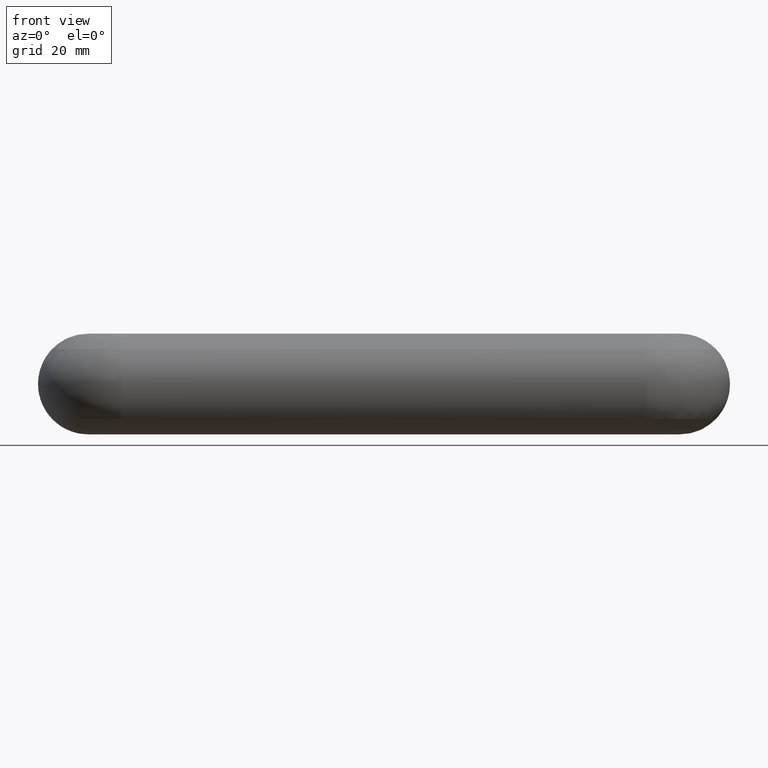
[diagram: clean part render]
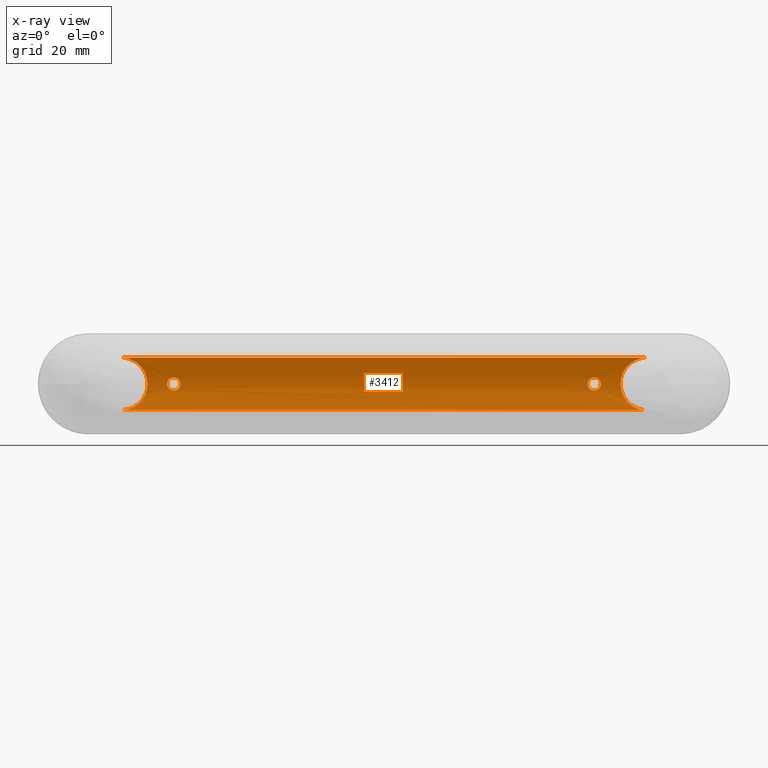
[diagram: x-ray — body ghosted, one internal face saturated and labeled with its STEP entity id]
A machine part, front view, then the same camera in x-ray: the body is ghosted and one INTERNAL B-rep face — a face not visible from any outside direction — is saturated and labeled: STEP entity #3412.
In plain terms, the highlighted face is a freeform B-spline surface patch.
Its self-contained STEP definition (entity closure, byte-faithful):
#70=CARTESIAN_POINT('',(-46.646547324523517,0.646650028865178,34.013075146340803));
#71=VERTEX_POINT('',#70);
#72=CARTESIAN_POINT('',(-46.500000100355180,0.000548694417445,34.000000009408318));
#73=VERTEX_POINT('',#72);
#74=CARTESIAN_POINT('',(-46.646547324523517,0.646650028865178,34.013075146340803));
#75=CARTESIAN_POINT('',(-46.635178346665889,0.622852803633140,34.012112565388847));
#76=CARTESIAN_POINT('',(-46.624431559368610,0.598755591103235,34.011190650084650));
#77=CARTESIAN_POINT('',(-46.576724043109799,0.483695527711371,34.007056075672097));
#78=CARTESIAN_POINT('',(-46.548324172051991,0.390199204505144,34.004470773048212));
#79=CARTESIAN_POINT('',(-46.519494405018712,0.245987254058344,34.001819493898310));
#80=CARTESIAN_POINT('',(-46.512181362451770,0.197097261630838,34.001138785218842));
#81=CARTESIAN_POINT('',(-46.502426242824612,0.098605670779868,34.000228332842312));
#82=CARTESIAN_POINT('',(-46.500017798733211,0.049506290083991,34.000001826483349));
#83=CARTESIAN_POINT('',(-46.500000100355180,0.000548694417445,34.000000009408318));
#84=B_SPLINE_CURVE_WITH_KNOTS('',3,(#74,#75,#76,#77,#78,#79,#80,#81,#82,#83),.UNSPECIFIED.,.F.,.U.,(4,2,2,2,4),(0.429164327943626,0.437500000000011,0.468750000000011,0.484375000000010,0.500000000000010),.UNSPECIFIED.);
#85=EDGE_CURVE('',#71,#73,#84,.T.);
#213=CARTESIAN_POINT('',(-47.934570894285699,1.498572897347724,34.070333308062203));
#214=VERTEX_POINT('',#213);
#220=CARTESIAN_POINT('',(-49.500000000000000,-2.154852E-015,34.0));
#221=VERTEX_POINT('',#220);
#222=CARTESIAN_POINT('',(-49.500000000000000,-2.154852E-015,34.0));
#223=CARTESIAN_POINT('',(-49.500000000000000,0.099155494789274,34.0));
#224=CARTESIAN_POINT('',(-49.490265023748648,0.196643194697829,34.000920983503548));
#225=CARTESIAN_POINT('',(-49.461664952560817,0.340477845406665,34.003551196677527));
#226=CARTESIAN_POINT('',(-49.449781267459080,0.388020289258829,34.004636195327329));
#227=CARTESIAN_POINT('',(-49.421206878134363,0.482282570590507,34.007200791893439));
#228=CARTESIAN_POINT('',(-49.404439199034613,0.529118846917612,34.008686806216787));
#229=CARTESIAN_POINT('',(-49.347957562225673,0.665338471931591,34.013581314719687));
#230=CARTESIAN_POINT('',(-49.301880942018109,0.751472802604176,34.017448578374967));
#231=CARTESIAN_POINT('',(-49.220243217463107,0.873732127311485,34.023822187419512));
#232=CARTESIAN_POINT('',(-49.190806447335142,0.913466420437885,34.026051124199107));
#233=CARTESIAN_POINT('',(-49.128117180875201,0.989844696150229,34.030602044363967));
#234=CARTESIAN_POINT('',(-49.095131214683377,1.026196093306536,34.032905022735797));
#235=CARTESIAN_POINT('',(-48.991397096388333,1.129909285933477,34.039796155902792));
#236=CARTESIAN_POINT('',(-48.915918437304192,1.191981137575843,34.044367593759489));
#237=CARTESIAN_POINT('',(-48.792959906642267,1.274223681498060,34.050795940287117));
#238=CARTESIAN_POINT('',(-48.750385448019479,1.299742142241517,34.052862038858763));
#239=CARTESIAN_POINT('',(-48.663832526832692,1.346006810249070,34.056700327261169));
#240=CARTESIAN_POINT('',(-48.575427195540932,1.387814163581718,34.060269109226439));
#241=CARTESIAN_POINT('',(-48.483365864834823,1.420833028626499,34.063204868206547));
#242=CARTESIAN_POINT('',(-48.389448020954411,1.449392732663630,34.065776885128876));
#243=CARTESIAN_POINT('',(-48.341294345931722,1.461490591875880,34.066885460291772));
#244=CARTESIAN_POINT('',(-48.196059418734428,1.490404987629908,34.069555319600731));
#245=CARTESIAN_POINT('',(-48.098699785285007,1.499946455507620,34.070462635924457));
#246=CARTESIAN_POINT('',(-47.978761911331127,1.500011792091789,34.070468788324902));
#247=CARTESIAN_POINT('',(-47.956679949231173,1.499538626634393,34.070424118158563));
#248=CARTESIAN_POINT('',(-47.934570894285699,1.498572897347724,34.070333308062203));
#249=B_SPLINE_CURVE_WITH_KNOTS('',3,(#222,#223,#224,#225,#226,#227,#228,#229,#230,#231,#232,#233,#234,#235,#236,#237,#238,#239,#240,#241,#242,#243,#244,#245,#246,#247,#248),.UNSPECIFIED.,.F.,.U.,(4,2,2,2,2,2,2,2,2,1,2,2,2,4),(0.0,0.031250000000001,0.046875000000002,0.062500000000002,0.093750000000003,0.109375000000004,0.125000000000004,0.156250000000005,0.171875000000005,0.187500000000006,0.203125000000006,0.218750000000007,0.250000000000006,0.257041345475773),.UNSPECIFIED.);
#250=EDGE_CURVE('',#221,#214,#249,.T.);
#252=CARTESIAN_POINT('',(-46.500000100355180,0.000548694417352,34.000000009408311));
#253=CARTESIAN_POINT('',(-46.499964283409561,-0.097366307346164,33.999996651569873));
#254=CARTESIAN_POINT('',(-46.509423597503158,-0.194718164068061,34.000892101180952));
#255=CARTESIAN_POINT('',(-46.538181504104742,-0.339882301441433,34.003537197194660));
#256=CARTESIAN_POINT('',(-46.550242788407971,-0.388092488058635,34.004638338125979));
#257=CARTESIAN_POINT('',(-46.578732294547052,-0.482089059497409,34.007195348777962));
#258=CARTESIAN_POINT('',(-46.611682277342133,-0.574213586897603,34.010115721717348));
#259=CARTESIAN_POINT('',(-46.653413663035671,-0.662655513992284,34.013669424617547));
#260=CARTESIAN_POINT('',(-46.699593858995577,-0.749233582777349,34.017493105458357));
#261=CARTESIAN_POINT('',(-46.725059517656490,-0.791808118957979,34.019551706023350));
#262=CARTESIAN_POINT('',(-46.807225019279180,-0.914888609848644,34.025967011227117));
#263=CARTESIAN_POINT('',(-46.869243327579987,-0.990429581229545,34.030533501296041));
#264=CARTESIAN_POINT('',(-46.972857399725243,-1.094243314167390,34.037423944690168));
#265=CARTESIAN_POINT('',(-47.009172637497002,-1.127253460676834,34.039727798406041));
#266=CARTESIAN_POINT('',(-47.085469426072990,-1.189988679040801,34.044282653000643));
#267=CARTESIAN_POINT('',(-47.125204155167182,-1.219481102988849,34.046517213833560));
#268=CARTESIAN_POINT('',(-47.247407606717047,-1.301234956611312,34.052906965094976));
#269=CARTESIAN_POINT('',(-47.333489138931007,-1.347374874574763,34.056787827491100));
#270=CARTESIAN_POINT('',(-47.469593724377972,-1.403952680085882,34.061704130314077));
#271=CARTESIAN_POINT('',(-47.516399344882487,-1.420759713082729,34.063198280327377));
#272=CARTESIAN_POINT('',(-47.610679957866282,-1.449433565480666,34.065780547709991));
#273=CARTESIAN_POINT('',(-47.658224008809270,-1.461362031286811,34.066873705992592));
#274=CARTESIAN_POINT('',(-47.802039798706652,-1.490090942616703,34.069526092051063));
#275=CARTESIAN_POINT('',(-47.899483655690268,-1.499904095675678,34.070458647126053));
#276=CARTESIAN_POINT('',(-48.097633322687763,-1.500094519021723,34.070476578279347));
#277=CARTESIAN_POINT('',(-48.195321727622179,-1.490438245255595,34.069558790423393));
#278=CARTESIAN_POINT('',(-48.339169445305060,-1.461968971087258,34.066929437448273));
#279=CARTESIAN_POINT('',(-48.386707631888918,-1.450131041567799,34.065844099240792));
#280=CARTESIAN_POINT('',(-48.480944956339599,-1.421659164234226,34.063278582839978));
#281=CARTESIAN_POINT('',(-48.527806874749658,-1.404933668647629,34.061790648912663));
#282=CARTESIAN_POINT('',(-48.664148519902618,-1.348547954224050,34.056887313177818));
#283=CARTESIAN_POINT('',(-48.750328994403603,-1.302538168703583,34.053013931840951));
#284=CARTESIAN_POINT('',(-48.872622875045707,-1.221036092071026,34.046636296799143));
#285=CARTESIAN_POINT('',(-48.912330402504267,-1.191678339037893,34.044408834654661));
#286=CARTESIAN_POINT('',(-48.988816143658802,-1.129020221743376,34.039852756372440));
#287=CARTESIAN_POINT('',(-49.025212609843273,-1.096052472178691,34.037548173057019));
#288=CARTESIAN_POINT('',(-49.129042380380227,-0.992386503287885,34.030655416546701));
#289=CARTESIAN_POINT('',(-49.191167063634452,-0.916970933947787,34.026087322184999));
#290=CARTESIAN_POINT('',(-49.273476570426801,-0.794157472653987,34.019668514337113));
#291=CARTESIAN_POINT('',(-49.299054269215517,-0.751576986970337,34.017603173798683));
#292=CARTESIAN_POINT('',(-49.345416375096903,-0.665029878525455,34.013768063168172));
#293=CARTESIAN_POINT('',(-49.387309828242913,-0.576642272372239,34.010203534799878));
#294=CARTESIAN_POINT('',(-49.420402871611522,-0.484626534583855,34.007272246354688));
#295=CARTESIAN_POINT('',(-49.449036052379860,-0.390770667538297,34.004703748738137));
#296=CARTESIAN_POINT('',(-49.461160807984022,-0.342717355417631,34.003597354638629));
#297=CARTESIAN_POINT('',(-49.490263876994227,-0.197225624344254,34.000921490097689));
#298=CARTESIAN_POINT('',(-49.499999999999993,-0.099155494789274,34.0));
#299=CARTESIAN_POINT('',(-49.500000000000000,-2.114194E-015,34.0));
#300=B_SPLINE_CURVE_WITH_KNOTS('',3,(#252,#253,#254,#255,#256,#257,#258,#259,#260,#261,#262,#263,#264,#265,#266,#267,#268,#269,#270,#271,#272,#273,#274,#275,#276,#277,#278,#279,#280,#281,#282,#283,#284,#285,#286,#287,#288,#289,#290,#291,#292,#293,#294,#295,#296,#297,#298,#299),.UNSPECIFIED.,.F.,.U.,(4,2,2,1,2,2,2,2,2,2,2,2,2,2,2,2,2,2,2,2,2,1,2,2,4),(0.500000000000010,0.531250000000009,0.546875000000009,0.562500000000009,0.578125000000009,0.593750000000009,0.625000000000009,0.640625000000009,0.656250000000009,0.687500000000007,0.703125000000005,0.718750000000003,0.750000000000001,0.781249999999999,0.796874999999999,0.812499999999999,0.843749999999999,0.859375000000000,0.875000000000000,0.906250000000000,0.921875000000000,0.937500000000000,0.953125000000000,0.968750000000000,1.0),.UNSPECIFIED.);
#301=EDGE_CURVE('',#73,#221,#300,.T.);
#320=CARTESIAN_POINT('',(-47.934570894285699,1.498572897347724,34.070333308062203));
#321=CARTESIAN_POINT('',(-47.907619083490879,1.497396355314778,34.070222635959752));
#322=CARTESIAN_POINT('',(-47.880626973906693,1.495488679370876,34.070043398200937));
#323=CARTESIAN_POINT('',(-47.804385013222912,1.488011552658190,34.069342784269608));
#324=CARTESIAN_POINT('',(-47.755398560881623,1.480734561124001,34.068662637758557));
#325=CARTESIAN_POINT('',(-47.611084166309134,1.452021682473214,34.066011475626709));
#326=CARTESIAN_POINT('',(-47.517555177354517,1.423695819765120,34.063422683024982));
#327=CARTESIAN_POINT('',(-47.381302226160372,1.367344182812152,34.058522512091884));
#328=CARTESIAN_POINT('',(-47.336338146794319,1.346097684619390,34.056708598261757));
#329=CARTESIAN_POINT('',(-47.249492673034879,1.299679017992704,34.052857605342922));
#330=CARTESIAN_POINT('',(-47.207486625374990,1.274484996795246,34.050818183155371));
#331=CARTESIAN_POINT('',(-47.085616421952857,1.193085389199606,34.044453109088863));
#332=CARTESIAN_POINT('',(-47.009859367115567,1.131119816498217,34.039879361400267));
#333=CARTESIAN_POINT('',(-46.869757708165352,0.991143035727037,34.030575749491909));
#334=CARTESIAN_POINT('',(-46.807700379326093,0.915407783884753,34.026002717640857));
#335=CARTESIAN_POINT('',(-46.726209143028562,0.793631498912814,34.019644946740662));
#336=CARTESIAN_POINT('',(-46.700986237295680,0.751660893160824,34.017608558637157));
#337=CARTESIAN_POINT('',(-46.666907139565552,0.688040595925561,34.014789568082470));
#338=CARTESIAN_POINT('',(-46.656489336034362,0.667460013286191,34.013916808604222));
#339=CARTESIAN_POINT('',(-46.646547324523517,0.646650028865178,34.013075146340803));
#340=B_SPLINE_CURVE_WITH_KNOTS('',3,(#320,#321,#322,#323,#324,#325,#326,#327,#328,#329,#330,#331,#332,#333,#334,#335,#336,#337,#338,#339),.UNSPECIFIED.,.F.,.U.,(4,2,2,2,2,2,2,2,2,4),(0.257041345475773,0.265625000000006,0.281250000000007,0.312500000000008,0.328125000000008,0.343750000000009,0.375000000000010,0.406250000000011,0.421875000000011,0.429164327943626),.UNSPECIFIED.);
#341=EDGE_CURVE('',#214,#71,#340,.T.);
#401=CARTESIAN_POINT('',(46.818144120828990,0.924079869259536,34.026708027515042));
#402=VERTEX_POINT('',#401);
#403=CARTESIAN_POINT('',(49.499699899644803,0.000548694417225,34.000000009408303));
#404=VERTEX_POINT('',#403);
#405=CARTESIAN_POINT('',(46.818144120828990,0.924079869259536,34.026708027515042));
#406=CARTESIAN_POINT('',(46.825397840779800,0.933354594922333,34.027244021002822));
#407=CARTESIAN_POINT('',(46.832763770133653,0.942549007523321,34.027783979919931));
#408=CARTESIAN_POINT('',(46.871582819124811,0.989844696150216,34.030602044363988));
#409=CARTESIAN_POINT('',(46.904568785316627,1.026196093306528,34.032905022735797));
#410=CARTESIAN_POINT('',(47.008302903611657,1.129909285933478,34.039796155902792));
#411=CARTESIAN_POINT('',(47.083781562695812,1.191981137575848,34.044367593759503));
#412=CARTESIAN_POINT('',(47.206740093357752,1.274223681498072,34.050795940287117));
#413=CARTESIAN_POINT('',(47.249314551980518,1.299742142241515,34.052862038858741));
#414=CARTESIAN_POINT('',(47.335867473167312,1.346006810249071,34.056700327261169));
#415=CARTESIAN_POINT('',(47.424272804459022,1.387814163581721,34.060269109226439));
#416=CARTESIAN_POINT('',(47.516334135165188,1.420833028626499,34.063204868206547));
#417=CARTESIAN_POINT('',(47.610251979045593,1.449392732663630,34.065776885128876));
#418=CARTESIAN_POINT('',(47.658405654068311,1.461490591875879,34.066885460291758));
#419=CARTESIAN_POINT('',(47.803640581265583,1.490404987629908,34.069555319600731));
#420=CARTESIAN_POINT('',(47.901000214714990,1.499946455507620,34.070462635924471));
#421=CARTESIAN_POINT('',(48.047824197307747,1.500026438395264,34.070470167489802));
#422=CARTESIAN_POINT('',(48.096897211639472,1.497664013593982,34.070247145753882));
#423=CARTESIAN_POINT('',(48.195314793794637,1.488011978450980,34.069342642346378));
#424=CARTESIAN_POINT('',(48.244301160751959,1.480734932315389,34.068662440158803));
#425=CARTESIAN_POINT('',(48.388615296104767,1.452021887898652,34.066011108996960));
#426=CARTESIAN_POINT('',(48.482144106805073,1.423695911200391,34.063422200160538));
#427=CARTESIAN_POINT('',(48.618396782411061,1.367344098014154,34.058521849524048));
#428=CARTESIAN_POINT('',(48.663360768037514,1.346097539876716,34.056707874568907));
#429=CARTESIAN_POINT('',(48.750206055073122,1.299678753843762,34.052856759892641));
#430=CARTESIAN_POINT('',(48.792212009527972,1.274484673043496,34.050817276928662));
#431=CARTESIAN_POINT('',(48.914081933793568,1.193084886932697,34.044452020831919));
#432=CARTESIAN_POINT('',(48.989838803133487,1.131119195609354,34.039878152185644));
#433=CARTESIAN_POINT('',(49.129940092346160,0.991142178398209,34.030574299181680));
#434=CARTESIAN_POINT('',(49.191997242972143,0.915406812591953,34.026001151122657));
#435=CARTESIAN_POINT('',(49.273488221801507,0.793630362974130,34.019643212334600));
#436=CARTESIAN_POINT('',(49.298711043349783,0.751659703387732,34.017606769336631));
#437=CARTESIAN_POINT('',(49.345187118293452,0.664895792547946,34.013762191362751));
#438=CARTESIAN_POINT('',(49.366480763201203,0.619941557919248,34.011950159246929));
#439=CARTESIAN_POINT('',(49.422973808415669,0.483694558421629,34.007054662861123));
#440=CARTESIAN_POINT('',(49.451374108532903,0.390198428786636,34.004469642381530));
#441=CARTESIAN_POINT('',(49.480204522670910,0.245986770282754,34.001818788759877));
#442=CARTESIAN_POINT('',(49.487517782201977,0.197096875739126,34.001138222753447));
#443=CARTESIAN_POINT('',(49.497273334031007,0.098605479877104,34.000228054587630));
#444=CARTESIAN_POINT('',(49.499681991171990,0.049506195299095,34.000001688327522));
#445=CARTESIAN_POINT('',(49.499699899644803,0.000548694417225,34.000000009408303));
#446=B_SPLINE_CURVE_WITH_KNOTS('',3,(#405,#406,#407,#408,#409,#410,#411,#412,#413,#414,#415,#416,#417,#418,#419,#420,#421,#422,#423,#424,#425,#426,#427,#428,#429,#430,#431,#432,#433,#434,#435,#436,#437,#438,#439,#440,#441,#442,#443,#444,#445),.UNSPECIFIED.,.F.,.U.,(4,2,2,2,2,1,2,2,2,2,2,2,2,2,2,2,2,2,2,2,4),(0.105649075200949,0.109374999999995,0.124999999999995,0.156249999999993,0.171874999999994,0.187499999999994,0.203124999999994,0.218749999999994,0.249999999999997,0.265624999999997,0.281249999999997,0.312499999999997,0.328124999999997,0.343749999999997,0.374999999999996,0.406249999999994,0.421874999999993,0.437499999999991,0.468749999999989,0.484374999999988,0.499999999999988),.UNSPECIFIED.);
#447=EDGE_CURVE('',#402,#404,#446,.T.);
#550=CARTESIAN_POINT('',(47.934270789128057,-1.498575314769526,34.070333093464917));
#551=VERTEX_POINT('',#550);
#557=CARTESIAN_POINT('',(49.499699899644803,0.000548694417225,34.000000009408303));
#558=CARTESIAN_POINT('',(49.499735720641368,-0.097366214295195,33.999996651569937));
#559=CARTESIAN_POINT('',(49.490276410987498,-0.194717969035256,34.000892101181122));
#560=CARTESIAN_POINT('',(49.461518511641962,-0.339881939735777,34.003537197194973));
#561=CARTESIAN_POINT('',(49.449457229857423,-0.388092068497360,34.004638338126341));
#562=CARTESIAN_POINT('',(49.420967728844943,-0.482088522178087,34.007195348778410));
#563=CARTESIAN_POINT('',(49.388017751292423,-0.574212929155691,34.010115721717909));
#564=CARTESIAN_POINT('',(49.346286371069723,-0.662654730582933,34.013669424618222));
#565=CARTESIAN_POINT('',(49.300106180696353,-0.749232671043975,34.017493105459153));
#566=CARTESIAN_POINT('',(49.274640524902090,-0.791807141377030,34.019551706024188));
#567=CARTESIAN_POINT('',(49.192475031936972,-0.914887433401774,34.025967011228133));
#568=CARTESIAN_POINT('',(49.130456729451829,-0.990428271195315,34.030533501297143));
#569=CARTESIAN_POINT('',(49.026842666094652,-1.094241802269989,34.037423944691483));
#570=CARTESIAN_POINT('',(48.990527431263047,-1.127251881242902,34.039727798407398));
#571=CARTESIAN_POINT('',(48.914230648589808,-1.189986964019566,34.044282653002128));
#572=CARTESIAN_POINT('',(48.874495922437823,-1.219479320383810,34.046517213835102));
#573=CARTESIAN_POINT('',(48.752292479565412,-1.301232974683183,34.052906965096682));
#574=CARTESIAN_POINT('',(48.666210952988934,-1.347372763152705,34.056787827492919));
#575=CARTESIAN_POINT('',(48.530106375775368,-1.403950379540897,34.061704130316052));
#576=CARTESIAN_POINT('',(48.483300757992190,-1.420757350027282,34.063198280329409));
#577=CARTESIAN_POINT('',(48.389020150274810,-1.449431081454485,34.065780547712130));
#578=CARTESIAN_POINT('',(48.341476101882421,-1.461359488672976,34.066873705994773));
#579=CARTESIAN_POINT('',(48.197660319394721,-1.490088229801365,34.069526092053387));
#580=CARTESIAN_POINT('',(48.100216467030400,-1.499901276753577,34.070458647128483));
#581=CARTESIAN_POINT('',(47.978779174907793,-1.500017858259003,34.070469636351163));
#582=CARTESIAN_POINT('',(47.956487345372381,-1.499542525032861,34.070424445343797));
#583=CARTESIAN_POINT('',(47.934270789128057,-1.498575314769526,34.070333093464917));
#584=B_SPLINE_CURVE_WITH_KNOTS('',3,(#557,#558,#559,#560,#561,#562,#563,#564,#565,#566,#567,#568,#569,#570,#571,#572,#573,#574,#575,#576,#577,#578,#579,#580,#581,#582,#583),.UNSPECIFIED.,.F.,.U.,(4,2,2,1,2,2,2,2,2,2,2,2,2,4),(0.499999999999988,0.531249999999986,0.546874999999985,0.562499999999984,0.578124999999984,0.593749999999983,0.624999999999983,0.640624999999982,0.656249999999981,0.687499999999979,0.703124999999979,0.718749999999980,0.749999999999980,0.757053526828928),.UNSPECIFIED.);
#585=EDGE_CURVE('',#404,#551,#584,.T.);
#608=CARTESIAN_POINT('',(46.499699999999997,6.315478E-015,33.999999999999993));
#609=VERTEX_POINT('',#608);
#610=CARTESIAN_POINT('',(46.499699999999997,6.315478E-015,33.999999999999993));
#611=CARTESIAN_POINT('',(46.499699999999997,0.099155494789274,33.999999999999993));
#612=CARTESIAN_POINT('',(46.509434976251327,0.196643194697833,34.000920983503548));
#613=CARTESIAN_POINT('',(46.538035047439188,0.340477845406680,34.003551196677527));
#614=CARTESIAN_POINT('',(46.549918732540917,0.388020289258848,34.004636195327343));
#615=CARTESIAN_POINT('',(46.578493121865648,0.482282570590537,34.007200791893453));
#616=CARTESIAN_POINT('',(46.595260800965370,0.529118846917589,34.008686806216787));
#617=CARTESIAN_POINT('',(46.651742437774331,0.665338471931585,34.013581314719680));
#618=CARTESIAN_POINT('',(46.697819057981889,0.751472802604179,34.017448578374967));
#619=CARTESIAN_POINT('',(46.772967694057819,0.864014174248214,34.023315572208872));
#620=CARTESIAN_POINT('',(46.794981090046868,0.894458473293528,34.024994039792993));
#621=CARTESIAN_POINT('',(46.818144120828990,0.924079869259536,34.026708027515042));
#622=B_SPLINE_CURVE_WITH_KNOTS('',3,(#610,#611,#612,#613,#614,#615,#616,#617,#618,#619,#620,#621),.UNSPECIFIED.,.F.,.U.,(4,2,2,2,2,4),(0.0,0.031249999999998,0.046874999999997,0.062499999999996,0.093749999999995,0.105649075200949),.UNSPECIFIED.);
#623=EDGE_CURVE('',#609,#402,#622,.T.);
#625=CARTESIAN_POINT('',(47.934270789128057,-1.498575314769526,34.070333093464917));
#626=CARTESIAN_POINT('',(47.858058935580907,-1.495257540800524,34.070019719270583));
#627=CARTESIAN_POINT('',(47.782732875400427,-1.486151505443654,34.069163137908411));
#628=CARTESIAN_POINT('',(47.660530671038373,-1.461966298651603,34.066929437450561));
#629=CARTESIAN_POINT('',(47.612992481862591,-1.450128428669147,34.065844099243023));
#630=CARTESIAN_POINT('',(47.518755152046943,-1.421656674570510,34.063278582842088));
#631=CARTESIAN_POINT('',(47.471893230852629,-1.404931242938829,34.061790648914730));
#632=CARTESIAN_POINT('',(47.335551577249063,-1.348545722627811,34.056887313179729));
#633=CARTESIAN_POINT('',(47.249371096936599,-1.302536070597526,34.053013931842749));
#634=CARTESIAN_POINT('',(47.127077207313832,-1.221034200253052,34.046636296800749));
#635=CARTESIAN_POINT('',(47.087369676808308,-1.191676517209977,34.044408834656217));
#636=CARTESIAN_POINT('',(47.010883929508182,-1.129018541081315,34.039852756373882));
#637=CARTESIAN_POINT('',(46.974487460256668,-1.096050861967198,34.037548173058390));
#638=CARTESIAN_POINT('',(46.870657680535253,-0.992385104045355,34.030655416547887));
#639=CARTESIAN_POINT('',(46.808532991180108,-0.916969674844553,34.026087322186093));
#640=CARTESIAN_POINT('',(46.726223475269983,-0.794156422988843,34.019668514338022));
#641=CARTESIAN_POINT('',(46.700645773448322,-0.751576006972455,34.017603173799522));
#642=CARTESIAN_POINT('',(46.654283661646289,-0.665029034525811,34.013768063168889));
#643=CARTESIAN_POINT('',(46.612390202690271,-0.576641561829477,34.010203534800503));
#644=CARTESIAN_POINT('',(46.579297153729641,-0.484625952491892,34.007272246355178));
#645=CARTESIAN_POINT('',(46.550663967479693,-0.390770211359635,34.004703748738550));
#646=CARTESIAN_POINT('',(46.538539209179071,-0.342716961177898,34.003597354638963));
#647=CARTESIAN_POINT('',(46.509436132334962,-0.197225410051084,34.000921490097873));
#648=CARTESIAN_POINT('',(46.499700004477667,-0.099155391936111,34.000000000000078));
#649=CARTESIAN_POINT('',(46.499699999999997,6.315478E-015,33.999999999999993));
#650=B_SPLINE_CURVE_WITH_KNOTS('',3,(#625,#626,#627,#628,#629,#630,#631,#632,#633,#634,#635,#636,#637,#638,#639,#640,#641,#642,#643,#644,#645,#646,#647,#648,#649),.UNSPECIFIED.,.F.,.U.,(4,2,2,2,2,2,2,2,2,1,2,2,4),(0.757053526828928,0.781249999999980,0.796874999999981,0.812499999999983,0.843749999999987,0.859374999999990,0.874999999999992,0.906249999999995,0.921874999999995,0.937499999999996,0.953124999999997,0.968749999999998,1.0),.UNSPECIFIED.);
#651=EDGE_CURVE('',#551,#609,#650,.T.);
#3220=CARTESIAN_POINT('',(-62.999685000000007,6.386210838728633,35.329747407651610));
#3221=CARTESIAN_POINT('',(63.074684625000003,6.386210838728633,35.329747407651610));
#3222=CARTESIAN_POINT('',(-62.999685000000007,-0.098590311985283,32.506803008092376));
#3223=CARTESIAN_POINT('',(63.074684625000003,-0.098590311985283,32.506803008092376));
#3224=CARTESIAN_POINT('',(-62.999685000000014,-6.551160730065451,35.402661438164571));
#3225=CARTESIAN_POINT('',(63.074684624999996,-6.551160730065451,35.402661438164571));
#3233=(BOUNDED_SURFACE()B_SPLINE_SURFACE(1,2,((#3220,#3222,#3224),(#3221,#3223,#3225)),.UNSPECIFIED.,.F.,.F.,.U.)B_SPLINE_SURFACE_WITH_KNOTS((2,2),(3,3),(0.0,126.074369625000000),(0.0,13.514443466652139),.UNSPECIFIED.)GEOMETRIC_REPRESENTATION_ITEM()RATIONAL_B_SPLINE_SURFACE(((1.0,0.912428955724240,0.995199893620000),(1.0,0.912428955724240,0.995199893620000)))REPRESENTATION_ITEM('')SURFACE());
#3234=CARTESIAN_POINT('',(-59.999699999999997,-6.0,35.167603025808702));
#3235=VERTEX_POINT('',#3234);
#3236=CARTESIAN_POINT('',(59.999699999999997,-6.0,35.167603025808702));
#3237=VERTEX_POINT('',#3236);
#3238=CARTESIAN_POINT('',(-59.999699999999997,-6.0,35.167603025808702));
#3239=CARTESIAN_POINT('',(59.999699999999997,-6.0,35.167603025808702));
#3240=QUASI_UNIFORM_CURVE('',1,(#3238,#3239),.UNSPECIFIED.,.F.,.U.);
#3241=EDGE_CURVE('',#3235,#3237,#3240,.T.);
#3242=ORIENTED_EDGE('',*,*,#3241,.T.);
#3243=CARTESIAN_POINT('',(59.999699999999997,6.0,35.167603025808702));
#3244=VERTEX_POINT('',#3243);
#3245=CARTESIAN_POINT('',(59.999699999999997,6.0,35.167603025808702));
#3246=CARTESIAN_POINT('',(59.599439199882397,6.0,35.167603025808688));
#3247=CARTESIAN_POINT('',(59.206676438054423,5.960357239596930,35.151395769228728));
#3248=CARTESIAN_POINT('',(58.628110967990409,5.844435791898569,35.105561548658557));
#3249=CARTESIAN_POINT('',(58.437030834345947,5.796312262243952,35.086697317949692));
#3250=CARTESIAN_POINT('',(58.153094428477658,5.709627006548148,35.053391099380839));
#3251=CARTESIAN_POINT('',(58.058668821345293,5.678218980672506,35.041420120483693));
#3252=CARTESIAN_POINT('',(57.872661432370130,5.611192365335045,35.016148591114977));
#3253=CARTESIAN_POINT('',(57.780905781211082,5.575533705284524,35.002832146899571));
#3254=CARTESIAN_POINT('',(57.328186188050182,5.386742624080043,34.933184831981158));
#3255=CARTESIAN_POINT('',(56.985217430673842,5.202451445431585,34.867688792572061));
#3256=CARTESIAN_POINT('',(56.579508489160730,4.930702578422347,34.778586019913533));
#3257=CARTESIAN_POINT('',(56.499527976043282,4.874262730819746,34.760402399250871));
#3258=CARTESIAN_POINT('',(56.341909625138022,4.757122127916675,34.723430972175002));
#3259=CARTESIAN_POINT('',(56.264747231264877,4.696769340945444,34.704754127859488));
#3260=CARTESIAN_POINT('',(56.038702343937892,4.510937294574108,34.648511510295613));
#3261=CARTESIAN_POINT('',(55.894967190054302,4.380489374984387,34.610669836695159));
#3262=CARTESIAN_POINT('',(55.620978996238392,4.106619166250102,34.535335468787487));
#3263=CARTESIAN_POINT('',(55.490726733632997,3.963196670963746,34.497840746397713));
#3264=CARTESIAN_POINT('',(55.305465437705351,3.738128384171152,34.442610645495513));
#3265=CARTESIAN_POINT('',(55.245401248568982,3.661446651353721,34.424369166388232));
#3266=CARTESIAN_POINT('',(55.128694867796213,3.504690742506689,34.388350175428123));
#3267=CARTESIAN_POINT('',(55.071964721872440,3.424484711546501,34.370544551773783));
#3268=CARTESIAN_POINT('',(54.798023909350050,3.016172081075608,34.283312170161082));
#3269=CARTESIAN_POINT('',(54.613700950567932,2.672723079807311,34.220611162792501));
#3270=CARTESIAN_POINT('',(54.387988677703213,2.132323765440063,34.141679296230002));
#3271=CARTESIAN_POINT('',(54.321279650060838,1.947956812384160,34.117886104083013));
#3272=CARTESIAN_POINT('',(54.234435050109163,1.664772780573832,34.086560680496852));
#3273=CARTESIAN_POINT('',(54.207671373461380,1.569179187452361,34.076838324886367));
#3274=CARTESIAN_POINT('',(54.158783024450877,1.376084233511325,34.058990206501250));
#3275=CARTESIAN_POINT('',(54.136835268410998,1.279300412110458,34.050929358773722));
#3276=CARTESIAN_POINT('',(54.039339616483772,0.794218221895805,34.014987043231820));
#3277=CARTESIAN_POINT('',(54.000165441790173,0.402460982800336,34.000174540569688));
#3278=CARTESIAN_POINT('',(53.999588743433108,-0.091865492344827,33.999958278812272));
#3279=CARTESIAN_POINT('',(54.001915116225931,-0.190964180258303,34.000831158852748));
#3280=CARTESIAN_POINT('',(54.011538829806518,-0.389636535707089,34.004436418315187));
#3281=CARTESIAN_POINT('',(54.018870404665023,-0.489515414653622,34.007181604998387));
#3282=CARTESIAN_POINT('',(54.048232431573872,-0.787290124697080,34.018146650457162));
#3283=CARTESIAN_POINT('',(54.077509500782597,-0.983098007415572,34.029056038840729));
#3284=CARTESIAN_POINT('',(54.193395177342033,-1.562725923250655,34.071785457889597));
#3285=CARTESIAN_POINT('',(54.307782062047629,-1.938818540914208,34.113603000686453));
#3286=CARTESIAN_POINT('',(54.497990633818787,-2.396039074547827,34.180153732166367));
#3287=CARTESIAN_POINT('',(54.538229955280521,-2.486365776642339,34.194112376956753));
#3288=CARTESIAN_POINT('',(54.622640399012973,-2.664000726737872,34.223080197469770));
#3289=CARTESIAN_POINT('',(54.666868023072752,-2.751445641914044,34.238109196077488));
#3290=CARTESIAN_POINT('',(54.805516673399360,-3.009760726012300,34.284658460189533));
#3291=CARTESIAN_POINT('',(54.905887790930500,-3.176621116062990,34.317640578465529));
#3292=CARTESIAN_POINT('',(55.122359656472590,-3.499913671747188,34.386610776915667));
#3293=CARTESIAN_POINT('',(55.238459868529908,-3.656345793575812,34.422600746933092));
#3294=CARTESIAN_POINT('',(55.424679712610157,-3.883137572621099,34.478166970199347));
#3295=CARTESIAN_POINT('',(55.488939804847732,-3.957603113961449,34.497000560752006));
#3296=CARTESIAN_POINT('',(55.620425229199803,-4.102625065447755,34.534745990016191));
#3297=CARTESIAN_POINT('',(55.687693628415303,-4.173255749308924,34.553672707198210));
#3298=CARTESIAN_POINT('',(56.031566068696947,-4.517224044352569,34.648253092855377));
#3299=CARTESIAN_POINT('',(56.330517737703893,-4.763298087824689,34.723767114085277));
#3300=CARTESIAN_POINT('',(56.734937066932012,-5.034959502079358,34.812753654676023));
#3301=CARTESIAN_POINT('',(56.817372785744361,-5.087477002464951,34.830278826151151));
#3302=CARTESIAN_POINT('',(56.985435070828373,-5.188818332334230,34.864643147353277));
#3303=CARTESIAN_POINT('',(57.071251027759807,-5.237732214900453,34.881514897386673));
#3304=CARTESIAN_POINT('',(57.330828187754861,-5.377335009266765,34.930361968185800));
#3305=CARTESIAN_POINT('',(57.507419186817977,-5.461376651159694,34.960725002009703));
#3306=CARTESIAN_POINT('',(58.047759191979253,-5.687030982185144,35.043951451947542));
#3307=CARTESIAN_POINT('',(58.421970193428159,-5.802456502422559,35.088975433913099));
#3308=CARTESIAN_POINT('',(58.908579055962790,-5.900789217197903,35.127840311297739));
#3309=CARTESIAN_POINT('',(59.007065339620233,-5.918160045603141,35.134750671285190));
#3310=CARTESIAN_POINT('',(59.204257177521733,-5.947874629691555,35.146615088818940));
#3311=CARTESIAN_POINT('',(59.303100007783627,-5.960257170541039,35.151584302734982));
#3312=CARTESIAN_POINT('',(59.600368651807401,-5.990008583209005,35.163549811219298));
#3313=CARTESIAN_POINT('',(59.799533032961783,-5.999999999999999,35.167603025808702));
#3314=CARTESIAN_POINT('',(59.999700000000011,-6.0,35.167603025808702));
#3315=B_SPLINE_CURVE_WITH_KNOTS('',3,(#3245,#3246,#3247,#3248,#3249,#3250,#3251,#3252,#3253,#3254,#3255,#3256,#3257,#3258,#3259,#3260,#3261,#3262,#3263,#3264,#3265,#3266,#3267,#3268,#3269,#3270,#3271,#3272,#3273,#3274,#3275,#3276,#3277,#3278,#3279,#3280,#3281,#3282,#3283,#3284,#3285,#3286,#3287,#3288,#3289,#3290,#3291,#3292,#3293,#3294,#3295,#3296,#3297,#3298,#3299,#3300,#3301,#3302,#3303,#3304,#3305,#3306,#3307,#3308,#3309,#3310,#3311,#3312,#3313,#3314),.UNSPECIFIED.,.F.,.U.,(4,2,2,2,2,2,2,2,2,2,2,2,2,2,2,2,2,2,2,2,2,2,2,2,2,2,2,2,2,2,2,2,2,2,4),(0.0,0.062499999999999,0.093749999999999,0.109374999999999,0.125000000000000,0.187499999999999,0.203124999999999,0.218749999999999,0.249999999999999,0.281249999999998,0.296874999999998,0.312499999999999,0.374999999999998,0.406249999999998,0.421874999999998,0.437499999999998,0.499999999999997,0.515624999999997,0.531249999999997,0.562499999999997,0.624999999999997,0.640624999999997,0.656249999999997,0.687499999999997,0.718749999999997,0.734374999999997,0.749999999999997,0.812499999999997,0.828124999999998,0.843749999999998,0.874999999999998,0.937500000000001,0.953125000000001,0.968750000000000,1.0),.UNSPECIFIED.);
#3316=EDGE_CURVE('',#3244,#3237,#3315,.T.);
#3317=ORIENTED_EDGE('',*,*,#3316,.F.);
#3318=CARTESIAN_POINT('',(-59.999699999999997,6.0,35.167603025808702));
#3319=VERTEX_POINT('',#3318);
#3320=CARTESIAN_POINT('',(-59.999699999999997,6.0,35.167603025808702));
#3321=CARTESIAN_POINT('',(59.999699999999997,6.0,35.167603025808702));
#3322=QUASI_UNIFORM_CURVE('',1,(#3320,#3321),.UNSPECIFIED.,.F.,.U.);
#3323=EDGE_CURVE('',#3319,#3244,#3322,.T.);
#3324=ORIENTED_EDGE('',*,*,#3323,.F.);
#3325=CARTESIAN_POINT('',(-59.999699999999997,-6.0,35.167603025808702));
#3326=CARTESIAN_POINT('',(-59.599439199882397,-6.0,35.167603025808688));
#3327=CARTESIAN_POINT('',(-59.206676438054423,-5.960357239596930,35.151395769228728));
#3328=CARTESIAN_POINT('',(-58.628110967990409,-5.844435791898569,35.105561548658557));
#3329=CARTESIAN_POINT('',(-58.437030834345947,-5.796312262243952,35.086697317949692));
#3330=CARTESIAN_POINT('',(-58.153094428477658,-5.709627006548148,35.053391099380839));
#3331=CARTESIAN_POINT('',(-58.058668821345293,-5.678218980672506,35.041420120483693));
#3332=CARTESIAN_POINT('',(-57.872661432370130,-5.611192365335045,35.016148591114977));
#3333=CARTESIAN_POINT('',(-57.780905781211082,-5.575533705284524,35.002832146899571));
#3334=CARTESIAN_POINT('',(-57.328186188050182,-5.386742624080043,34.933184831981158));
#3335=CARTESIAN_POINT('',(-56.985217430673842,-5.202451445431585,34.867688792572061));
#3336=CARTESIAN_POINT('',(-56.579508489160730,-4.930702578422347,34.778586019913533));
#3337=CARTESIAN_POINT('',(-56.499527976043282,-4.874262730819746,34.760402399250871));
#3338=CARTESIAN_POINT('',(-56.341909625138022,-4.757122127916675,34.723430972175002));
#3339=CARTESIAN_POINT('',(-56.264747231264877,-4.696769340945444,34.704754127859488));
#3340=CARTESIAN_POINT('',(-56.038702343937892,-4.510937294574108,34.648511510295613));
#3341=CARTESIAN_POINT('',(-55.894967190054302,-4.380489374984387,34.610669836695159));
#3342=CARTESIAN_POINT('',(-55.620978996238392,-4.106619166250102,34.535335468787487));
#3343=CARTESIAN_POINT('',(-55.490726733632997,-3.963196670963746,34.497840746397713));
#3344=CARTESIAN_POINT('',(-55.305465437705351,-3.738128384171152,34.442610645495513));
#3345=CARTESIAN_POINT('',(-55.245401248568982,-3.661446651353721,34.424369166388232));
#3346=CARTESIAN_POINT('',(-55.128694867796213,-3.504690742506689,34.388350175428123));
#3347=CARTESIAN_POINT('',(-55.071964721872440,-3.424484711546501,34.370544551773783));
#3348=CARTESIAN_POINT('',(-54.798023909350050,-3.016172081075608,34.283312170161082));
#3349=CARTESIAN_POINT('',(-54.613700950567932,-2.672723079807311,34.220611162792501));
#3350=CARTESIAN_POINT('',(-54.387988677703213,-2.132323765440063,34.141679296230002));
#3351=CARTESIAN_POINT('',(-54.321279650060838,-1.947956812384160,34.117886104083013));
#3352=CARTESIAN_POINT('',(-54.234435050109163,-1.664772780573832,34.086560680496852));
#3353=CARTESIAN_POINT('',(-54.207671373461380,-1.569179187452361,34.076838324886367));
#3354=CARTESIAN_POINT('',(-54.158783024450877,-1.376084233511325,34.058990206501250));
#3355=CARTESIAN_POINT('',(-54.136835268410998,-1.279300412110458,34.050929358773722));
#3356=CARTESIAN_POINT('',(-54.039339616483772,-0.794218221895805,34.014987043231820));
#3357=CARTESIAN_POINT('',(-54.000165441790173,-0.402460982800336,34.000174540569688));
#3358=CARTESIAN_POINT('',(-53.999588743433108,0.091865492344827,33.999958278812272));
#3359=CARTESIAN_POINT('',(-54.001915116225931,0.190964180258303,34.000831158852748));
#3360=CARTESIAN_POINT('',(-54.011538829806518,0.389636535707089,34.004436418315187));
#3361=CARTESIAN_POINT('',(-54.018870404665023,0.489515414653622,34.007181604998387));
#3362=CARTESIAN_POINT('',(-54.048232431573872,0.787290124697080,34.018146650457162));
#3363=CARTESIAN_POINT('',(-54.077509500782597,0.983098007415572,34.029056038840729));
#3364=CARTESIAN_POINT('',(-54.193395177342033,1.562725923250655,34.071785457889597));
#3365=CARTESIAN_POINT('',(-54.307782062047629,1.938818540914208,34.113603000686453));
#3366=CARTESIAN_POINT('',(-54.497990633818787,2.396039074547827,34.180153732166367));
#3367=CARTESIAN_POINT('',(-54.538229955280521,2.486365776642339,34.194112376956753));
#3368=CARTESIAN_POINT('',(-54.622640399012973,2.664000726737872,34.223080197469770));
#3369=CARTESIAN_POINT('',(-54.666868023072752,2.751445641914044,34.238109196077488));
#3370=CARTESIAN_POINT('',(-54.805516673399360,3.009760726012300,34.284658460189533));
#3371=CARTESIAN_POINT('',(-54.905887790930500,3.176621116062990,34.317640578465529));
#3372=CARTESIAN_POINT('',(-55.122359656472590,3.499913671747188,34.386610776915667));
#3373=CARTESIAN_POINT('',(-55.238459868529908,3.656345793575812,34.422600746933092));
#3374=CARTESIAN_POINT('',(-55.424679712610157,3.883137572621099,34.478166970199347));
#3375=CARTESIAN_POINT('',(-55.488939804847732,3.957603113961449,34.497000560752006));
#3376=CARTESIAN_POINT('',(-55.620425229199803,4.102625065447755,34.534745990016191));
#3377=CARTESIAN_POINT('',(-55.687693628415303,4.173255749308924,34.553672707198210));
#3378=CARTESIAN_POINT('',(-56.031566068696947,4.517224044352569,34.648253092855377));
#3379=CARTESIAN_POINT('',(-56.330517737703893,4.763298087824689,34.723767114085277));
#3380=CARTESIAN_POINT('',(-56.734937066932012,5.034959502079358,34.812753654676023));
#3381=CARTESIAN_POINT('',(-56.817372785744361,5.087477002464951,34.830278826151151));
#3382=CARTESIAN_POINT('',(-56.985435070828373,5.188818332334230,34.864643147353277));
#3383=CARTESIAN_POINT('',(-57.071251027759807,5.237732214900453,34.881514897386673));
#3384=CARTESIAN_POINT('',(-57.330828187754861,5.377335009266765,34.930361968185800));
#3385=CARTESIAN_POINT('',(-57.507419186817977,5.461376651159694,34.960725002009703));
#3386=CARTESIAN_POINT('',(-58.047759191979253,5.687030982185144,35.043951451947542));
#3387=CARTESIAN_POINT('',(-58.421970193428159,5.802456502422559,35.088975433913099));
#3388=CARTESIAN_POINT('',(-58.908579055962790,5.900789217197903,35.127840311297739));
#3389=CARTESIAN_POINT('',(-59.007065339620233,5.918160045603141,35.134750671285190));
#3390=CARTESIAN_POINT('',(-59.204257177521733,5.947874629691555,35.146615088818940));
#3391=CARTESIAN_POINT('',(-59.303100007783627,5.960257170541039,35.151584302734982));
#3392=CARTESIAN_POINT('',(-59.600368651807401,5.990008583209005,35.163549811219298));
#3393=CARTESIAN_POINT('',(-59.799533032961783,5.999999999999999,35.167603025808702));
#3394=CARTESIAN_POINT('',(-59.999700000000011,6.0,35.167603025808702));
#3395=B_SPLINE_CURVE_WITH_KNOTS('',3,(#3325,#3326,#3327,#3328,#3329,#3330,#3331,#3332,#3333,#3334,#3335,#3336,#3337,#3338,#3339,#3340,#3341,#3342,#3343,#3344,#3345,#3346,#3347,#3348,#3349,#3350,#3351,#3352,#3353,#3354,#3355,#3356,#3357,#3358,#3359,#3360,#3361,#3362,#3363,#3364,#3365,#3366,#3367,#3368,#3369,#3370,#3371,#3372,#3373,#3374,#3375,#3376,#3377,#3378,#3379,#3380,#3381,#3382,#3383,#3384,#3385,#3386,#3387,#3388,#3389,#3390,#3391,#3392,#3393,#3394),.UNSPECIFIED.,.F.,.U.,(4,2,2,2,2,2,2,2,2,2,2,2,2,2,2,2,2,2,2,2,2,2,2,2,2,2,2,2,2,2,2,2,2,2,4),(0.0,0.062499999999999,0.093749999999999,0.109374999999999,0.125000000000000,0.187499999999999,0.203124999999999,0.218749999999999,0.249999999999999,0.281249999999998,0.296874999999998,0.312499999999999,0.374999999999998,0.406249999999998,0.421874999999998,0.437499999999998,0.499999999999997,0.515624999999997,0.531249999999997,0.562499999999997,0.624999999999997,0.640624999999997,0.656249999999997,0.687499999999997,0.718749999999997,0.734374999999997,0.749999999999997,0.812499999999997,0.828124999999998,0.843749999999998,0.874999999999998,0.937500000000001,0.953125000000001,0.968750000000000,1.0),.UNSPECIFIED.);
#3396=EDGE_CURVE('',#3235,#3319,#3395,.T.);
#3397=ORIENTED_EDGE('',*,*,#3396,.F.);
#3398=EDGE_LOOP('',(#3242,#3317,#3324,#3397));
#3399=FACE_OUTER_BOUND('',#3398,.T.);
#3400=ORIENTED_EDGE('',*,*,#301,.T.);
#3401=ORIENTED_EDGE('',*,*,#250,.T.);
#3402=ORIENTED_EDGE('',*,*,#341,.T.);
#3403=ORIENTED_EDGE('',*,*,#85,.T.);
#3404=EDGE_LOOP('',(#3400,#3401,#3402,#3403));
#3405=FACE_BOUND('',#3404,.T.);
#3406=ORIENTED_EDGE('',*,*,#585,.T.);
#3407=ORIENTED_EDGE('',*,*,#651,.T.);
#3408=ORIENTED_EDGE('',*,*,#623,.T.);
#3409=ORIENTED_EDGE('',*,*,#447,.T.);
#3410=EDGE_LOOP('',(#3406,#3407,#3408,#3409));
#3411=FACE_BOUND('',#3410,.T.);
#3412=ADVANCED_FACE('',(#3399,#3405,#3411),#3233,.F.);